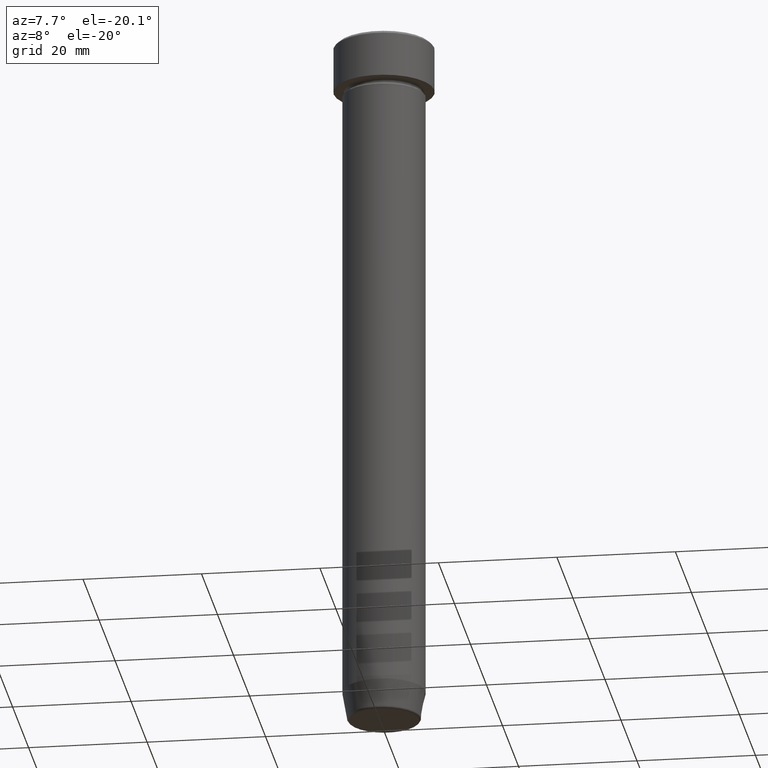
[diagram: clean part render]
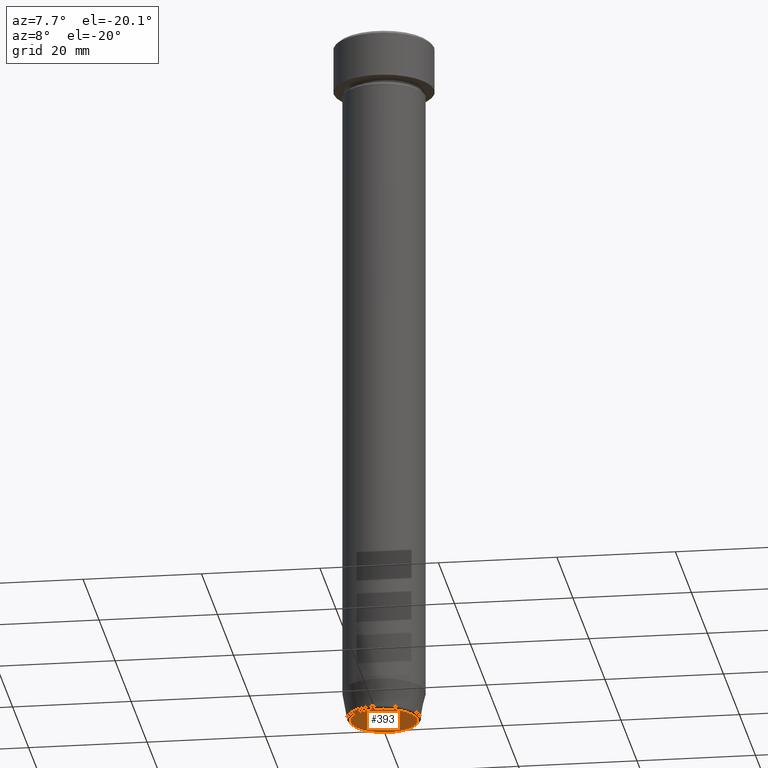
[diagram: same view with one face highlighted and labeled with its STEP entity id]
A machine part, auxiliary view. The second image highlights one B-rep face of the part: STEP entity #393.
In plain terms, the highlighted planar face has unit normal (0, -0, 1).
Its self-contained STEP definition (entity closure, byte-faithful):
#19 = CARTESIAN_POINT ( 'NONE',  ( 0.000000000000000000, 0.000000000000000000, -120.0000000000000000 ) ) ;
#39 = VERTEX_POINT ( 'NONE', #236 ) ;
#61 = AXIS2_PLACEMENT_3D ( 'NONE', #483, #531, #289 ) ;
#77 = ORIENTED_EDGE ( 'NONE', *, *, #491, .T. ) ;
#90 = VERTEX_POINT ( 'NONE', #334 ) ;
#112 = DIRECTION ( 'NONE',  ( 0.000000000000000000, 0.000000000000000000, -1.000000000000000000 ) ) ;
#148 = FACE_OUTER_BOUND ( 'NONE', #319, .T. ) ;
#209 = CARTESIAN_POINT ( 'NONE',  ( 0.000000000000000000, 0.000000000000000000, -120.0000000000000000 ) ) ;
#234 = DIRECTION ( 'NONE',  ( 1.000000000000000000, 0.000000000000000000, 0.000000000000000000 ) ) ;
#236 = CARTESIAN_POINT ( 'NONE',  ( -5.698815280869034439, 7.280546308273763704E-16, -120.0000000000000000 ) ) ;
#274 = CIRCLE ( 'NONE', #351, 5.698815280869034439 ) ;
#283 = CIRCLE ( 'NONE', #359, 5.698815280869034439 ) ;
#286 = EDGE_CURVE ( 'NONE', #39, #90, #274, .T. ) ;
#289 = DIRECTION ( 'NONE',  ( 1.000000000000000000, 0.000000000000000000, 0.000000000000000000 ) ) ;
#319 = EDGE_LOOP ( 'NONE', ( #77, #550 ) ) ;
#334 = CARTESIAN_POINT ( 'NONE',  ( 5.698815280869034439, 0.000000000000000000, -120.0000000000000000 ) ) ;
#351 = AXIS2_PLACEMENT_3D ( 'NONE', #209, #405, #494 ) ;
#359 = AXIS2_PLACEMENT_3D ( 'NONE', #19, #112, #234 ) ;
#393 = ADVANCED_FACE ( 'NONE', ( #148 ), #434, .F. ) ;
#405 = DIRECTION ( 'NONE',  ( 0.000000000000000000, 0.000000000000000000, -1.000000000000000000 ) ) ;
#434 = PLANE ( 'NONE',  #61 ) ;
#483 = CARTESIAN_POINT ( 'NONE',  ( 0.000000000000000000, 8.572527594031472993E-15, -120.0000000000000000 ) ) ;
#491 = EDGE_CURVE ( 'NONE', #90, #39, #283, .T. ) ;
#494 = DIRECTION ( 'NONE',  ( 1.000000000000000000, 0.000000000000000000, 0.000000000000000000 ) ) ;
#531 = DIRECTION ( 'NONE',  ( 0.000000000000000000, -0.000000000000000000, 1.000000000000000000 ) ) ;
#550 = ORIENTED_EDGE ( 'NONE', *, *, #286, .T. ) ;